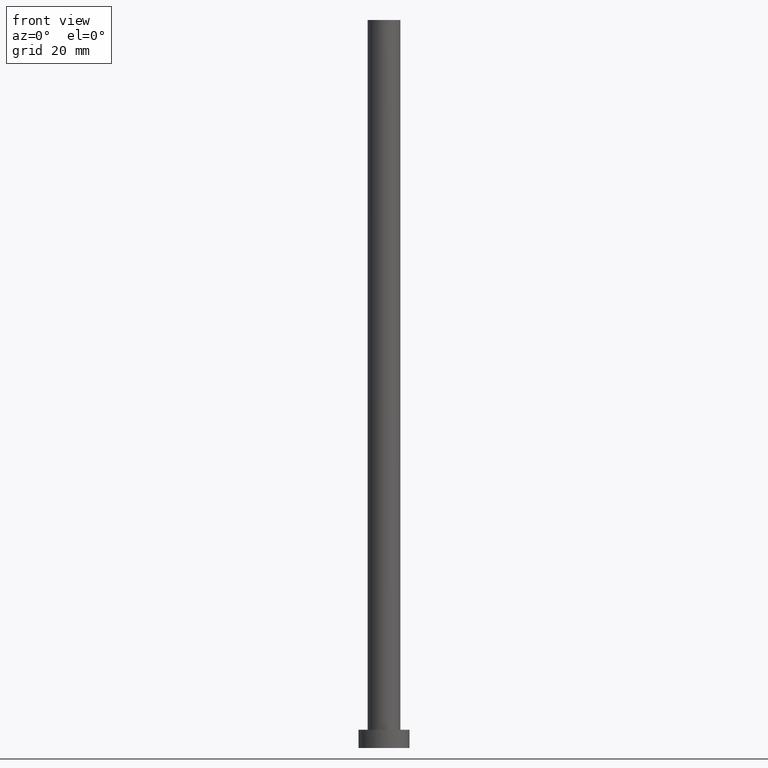
[diagram: clean part render]
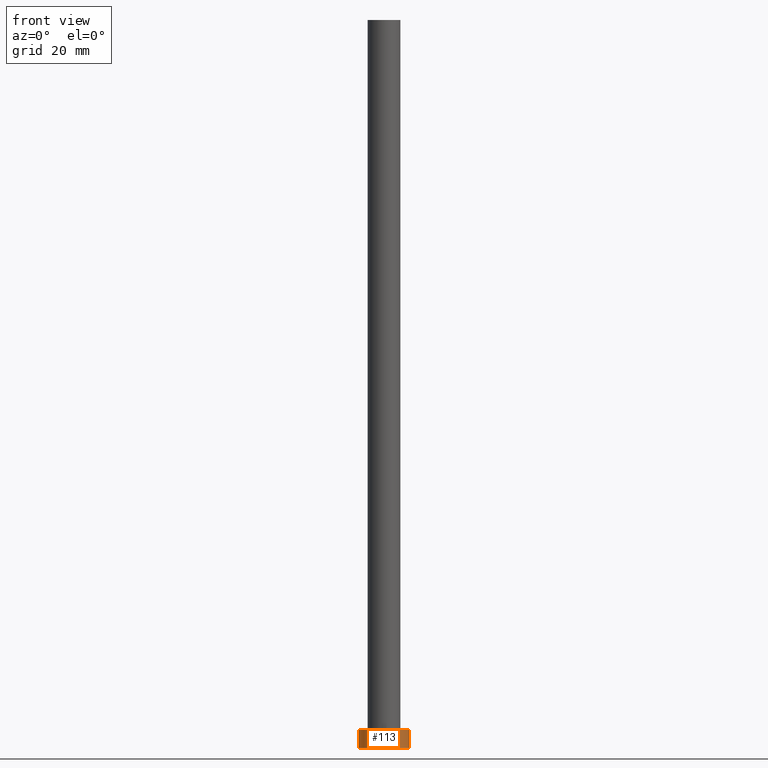
[diagram: same view with one face highlighted and labeled with its STEP entity id]
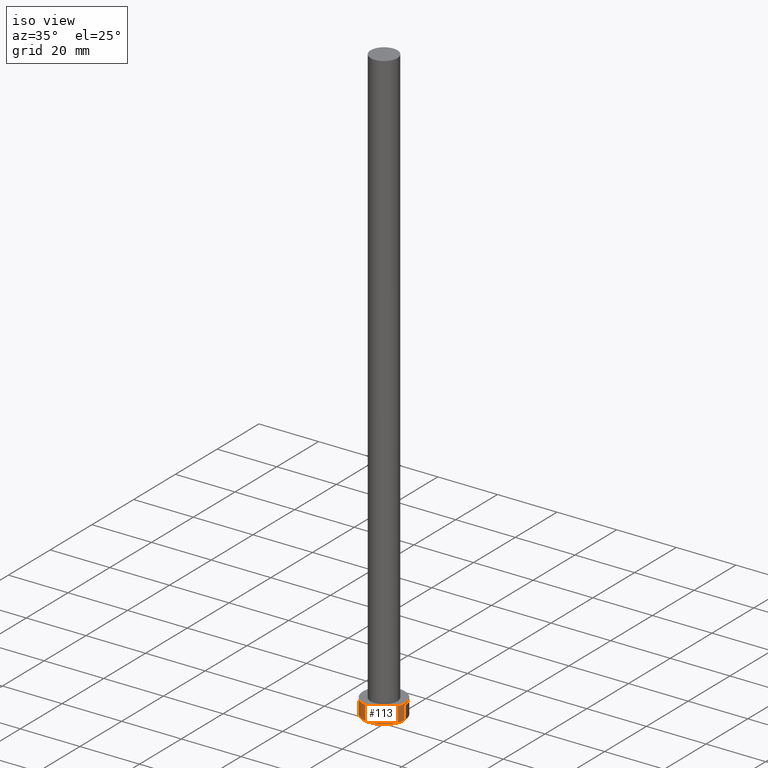
[diagram: same view with one face highlighted and labeled with its STEP entity id]
A machine part, front view. The second image highlights one B-rep face of the part: STEP entity #113.
A second angle (iso view) of the same face is appended — the face is thin or edge-on in the first view.
In plain terms, the highlighted cylindrical surface (edge-blend (fillet) strip) has radius 7 mm, axis along (-0, -0, -1).
Its self-contained STEP definition (entity closure, byte-faithful):
#2 = VERTEX_POINT ( 'NONE', #64 ) ;
#4 = DIRECTION ( 'NONE',  ( -0.000000000000000000, -0.000000000000000000, -1.000000000000000000 ) ) ;
#6 = LINE ( 'NONE', #92, #44 ) ;
#7 = EDGE_CURVE ( 'NONE', #250, #9, #46, .T. ) ;
#9 = VERTEX_POINT ( 'NONE', #177 ) ;
#16 = ORIENTED_EDGE ( 'NONE', *, *, #141, .T. ) ;
#17 = AXIS2_PLACEMENT_3D ( 'NONE', #73, #198, #221 ) ;
#25 = DIRECTION ( 'NONE',  ( 0.000000000000000000, 0.000000000000000000, 1.000000000000000000 ) ) ;
#28 = EDGE_CURVE ( 'NONE', #2, #123, #209, .T. ) ;
#31 = EDGE_LOOP ( 'NONE', ( #49, #157, #16, #214 ) ) ;
#32 = CARTESIAN_POINT ( 'NONE',  ( 7.000000000000000000, 8.572527594031473190E-16, 5.000000000000000000 ) ) ;
#44 = VECTOR ( 'NONE', #4, 1000.000000000000000 ) ;
#45 = DIRECTION ( 'NONE',  ( 1.000000000000000000, 0.000000000000000000, 0.000000000000000000 ) ) ;
#46 = CIRCLE ( 'NONE', #76, 7.000000000000000000 ) ;
#49 = ORIENTED_EDGE ( 'NONE', *, *, #74, .F. ) ;
#52 = CARTESIAN_POINT ( 'NONE',  ( 7.000000000000000000, 8.572527594031473190E-16, 5.000000000000000000 ) ) ;
#64 = CARTESIAN_POINT ( 'NONE',  ( -7.000000000000000000, 0.000000000000000000, 5.000000000000000000 ) ) ;
#71 = DIRECTION ( 'NONE',  ( 0.000000000000000000, 0.000000000000000000, 1.000000000000000000 ) ) ;
#73 = CARTESIAN_POINT ( 'NONE',  ( 0.000000000000000000, 0.000000000000000000, 5.000000000000000000 ) ) ;
#74 = EDGE_CURVE ( 'NONE', #123, #9, #200, .T. ) ;
#76 = AXIS2_PLACEMENT_3D ( 'NONE', #230, #25, #136 ) ;
#83 = AXIS2_PLACEMENT_3D ( 'NONE', #183, #71, #45 ) ;
#92 = CARTESIAN_POINT ( 'NONE',  ( -7.000000000000000000, 0.000000000000000000, 5.000000000000000000 ) ) ;
#113 = ADVANCED_FACE ( 'NONE', ( #120 ), #148, .T. ) ;
#120 = FACE_OUTER_BOUND ( 'NONE', #31, .T. ) ;
#123 = VERTEX_POINT ( 'NONE', #52 ) ;
#136 = DIRECTION ( 'NONE',  ( 1.000000000000000000, 0.000000000000000000, 0.000000000000000000 ) ) ;
#141 = EDGE_CURVE ( 'NONE', #2, #250, #6, .T. ) ;
#148 = CYLINDRICAL_SURFACE ( 'NONE', #17, 7.000000000000000000 ) ;
#157 = ORIENTED_EDGE ( 'NONE', *, *, #28, .F. ) ;
#177 = CARTESIAN_POINT ( 'NONE',  ( 7.000000000000000000, 8.572527594031473190E-16, 0.000000000000000000 ) ) ;
#183 = CARTESIAN_POINT ( 'NONE',  ( 0.000000000000000000, 0.000000000000000000, 5.000000000000000000 ) ) ;
#189 = CARTESIAN_POINT ( 'NONE',  ( -7.000000000000000000, 0.000000000000000000, 0.000000000000000000 ) ) ;
#198 = DIRECTION ( 'NONE',  ( -0.000000000000000000, -0.000000000000000000, -1.000000000000000000 ) ) ;
#200 = LINE ( 'NONE', #32, #215 ) ;
#209 = CIRCLE ( 'NONE', #83, 7.000000000000000000 ) ;
#214 = ORIENTED_EDGE ( 'NONE', *, *, #7, .T. ) ;
#215 = VECTOR ( 'NONE', #234, 1000.000000000000000 ) ;
#221 = DIRECTION ( 'NONE',  ( -1.000000000000000000, 0.000000000000000000, 0.000000000000000000 ) ) ;
#230 = CARTESIAN_POINT ( 'NONE',  ( 0.000000000000000000, 0.000000000000000000, 0.000000000000000000 ) ) ;
#234 = DIRECTION ( 'NONE',  ( -0.000000000000000000, -0.000000000000000000, -1.000000000000000000 ) ) ;
#250 = VERTEX_POINT ( 'NONE', #189 ) ;